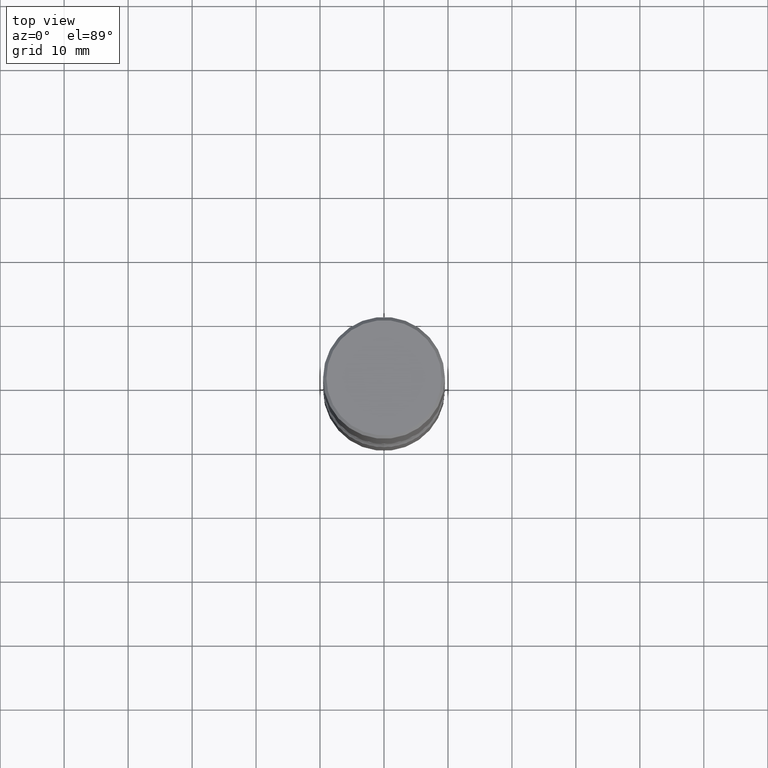
[diagram: clean part render]
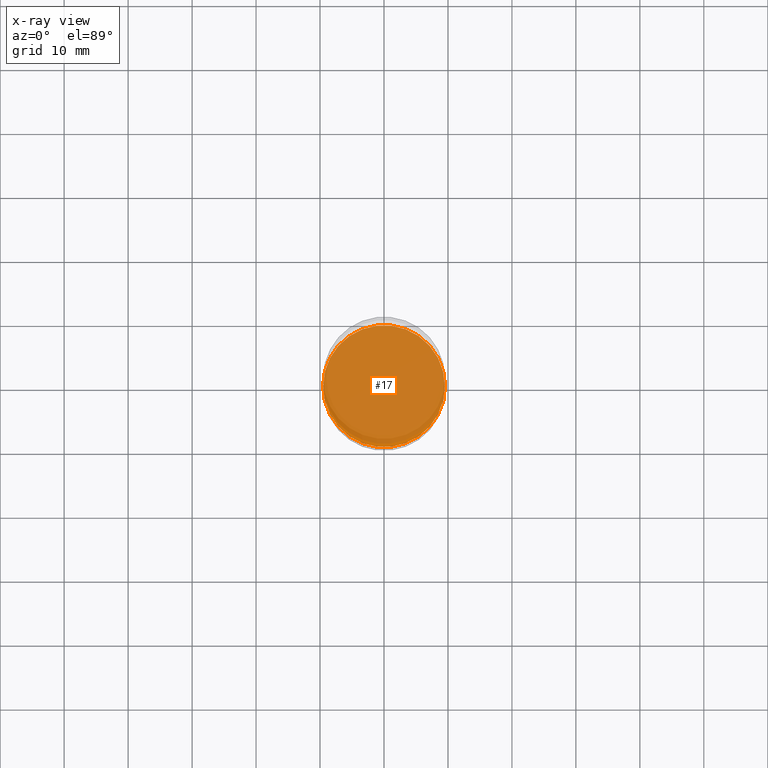
[diagram: x-ray — body ghosted, one internal face saturated and labeled with its STEP entity id]
A machine part, top view, then the same camera in x-ray: the body is ghosted and one INTERNAL B-rep face — a face not visible from any outside direction — is saturated and labeled: STEP entity #17.
In plain terms, the highlighted planar face has unit normal (0, -0, -1).
Its self-contained STEP definition (entity closure, byte-faithful):
#17 = ADVANCED_FACE ( 'NONE', ( #123 ), #211, .F. ) ;
#38 = CIRCLE ( 'NONE', #391, 0.3750000000000002220 ) ;
#49 = AXIS2_PLACEMENT_3D ( 'NONE', #481, #295, #254 ) ;
#75 = EDGE_CURVE ( 'NONE', #337, #318, #462, .T. ) ;
#97 = ORIENTED_EDGE ( 'NONE', *, *, #75, .T. ) ;
#123 = FACE_OUTER_BOUND ( 'NONE', #163, .T. ) ;
#152 = EDGE_CURVE ( 'NONE', #318, #337, #38, .T. ) ;
#157 = CARTESIAN_POINT ( 'NONE',  ( 0.3750000000000002220, -1.309305502066178637E-14, -2.999999999999999556 ) ) ;
#163 = EDGE_LOOP ( 'NONE', ( #240, #97 ) ) ;
#211 = PLANE ( 'NONE',  #405 ) ;
#234 = CARTESIAN_POINT ( 'NONE',  ( -0.3750000000000002220, -1.005318551763577873E-14, -2.999999999999999556 ) ) ;
#240 = ORIENTED_EDGE ( 'NONE', *, *, #152, .T. ) ;
#254 = DIRECTION ( 'NONE',  ( 1.000000000000000000, -6.982962677686263555E-15, 0.000000000000000000 ) ) ;
#261 = DIRECTION ( 'NONE',  ( -1.000000000000000000, 6.982962677686265922E-15, -4.876176775795935793E-29 ) ) ;
#295 = DIRECTION ( 'NONE',  ( -2.445468806185136597E-29, 3.491481338843145583E-15, 1.000000000000000000 ) ) ;
#298 = CARTESIAN_POINT ( 'NONE',  ( 7.336406418555408669E-29, -1.047444401652943478E-14, -2.999999999999999556 ) ) ;
#318 = VERTEX_POINT ( 'NONE', #157 ) ;
#337 = VERTEX_POINT ( 'NONE', #234 ) ;
#391 = AXIS2_PLACEMENT_3D ( 'NONE', #537, #543, #440 ) ;
#405 = AXIS2_PLACEMENT_3D ( 'NONE', #298, #491, #261 ) ;
#440 = DIRECTION ( 'NONE',  ( 1.000000000000000000, -6.982962677686263555E-15, 0.000000000000000000 ) ) ;
#462 = CIRCLE ( 'NONE', #49, 0.3750000000000002220 ) ;
#481 = CARTESIAN_POINT ( 'NONE',  ( 7.336406418555408669E-29, -1.047444401652943478E-14, -2.999999999999999556 ) ) ;
#491 = DIRECTION ( 'NONE',  ( 2.438088387897960049E-29, -3.491481338843145188E-15, -1.000000000000000000 ) ) ;
#537 = CARTESIAN_POINT ( 'NONE',  ( 7.336406418555408669E-29, -1.047444401652943478E-14, -2.999999999999999556 ) ) ;
#543 = DIRECTION ( 'NONE',  ( -2.445468806185136597E-29, 3.491481338843145583E-15, 1.000000000000000000 ) ) ;